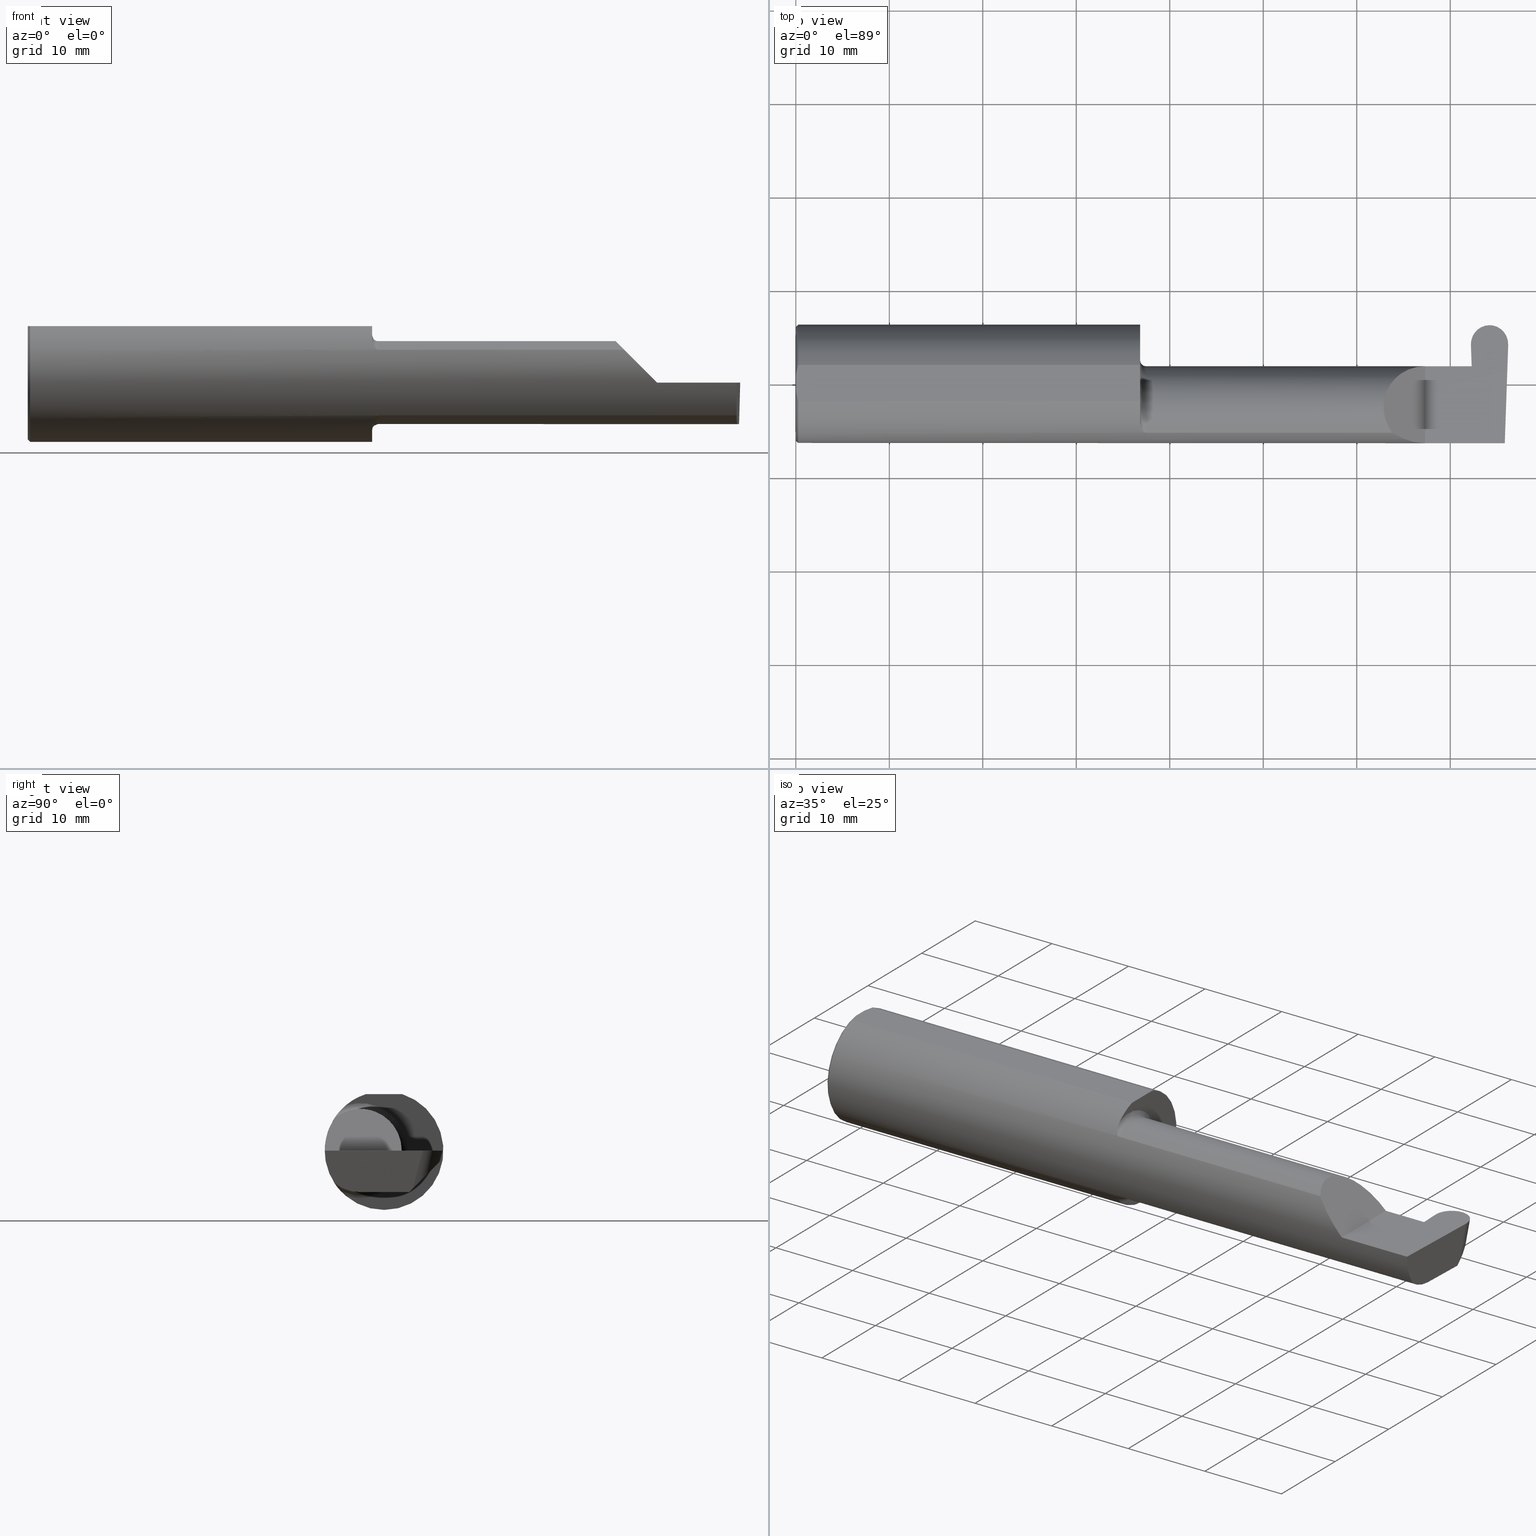
[diagram: canonical four-view strip — front | top / right | iso, engineering-drawing reading convention]
A machine part, canonical four-view strip (front | top / right | iso — engineering-drawing reading convention). The complete STEP part file that produces these views, byte-faithful:
ISO-10303-21;
HEADER;
FILE_DESCRIPTION (( 'STEP AP203' ),
    '1' );
FILE_NAME ('222497-GFR156-24.STEP',
    '2024-06-28T19:22:06',
    ( '' ),
    ( '' ),
    'SwSTEP 2.0',
    'SolidWorks 2024',
    '' );
FILE_SCHEMA (( 'CONFIG_CONTROL_DESIGN' ));
ENDSEC;

DATA;
#1 = DATE_AND_TIME ( #558, #137 ) ;
#2 = CC_DESIGN_SECURITY_CLASSIFICATION ( #703, ( #451 ) ) ;
#3 = LINE ( 'NONE', #213, #90 ) ;
#4 = FACE_OUTER_BOUND ( 'NONE', #405, .T. ) ;
#5 = ADVANCED_FACE ( 'NONE', ( #4 ), #702, .T. ) ;
#6 = DIRECTION ( 'NONE',  ( -0.03489949670249561930, -0.9993908270190959842, 0.000000000000000000 ) ) ;
#7 = CARTESIAN_POINT ( 'NONE',  ( 2.849201506090199398, -0.1008500000000000368, -0.1750000000000000444 ) ) ;
#8 = PLANE ( 'NONE',  #58 ) ;
#9 = CARTESIAN_POINT ( 'NONE',  ( 0.000000000000000000, -0.07650098038587520299, 0.2378499999999998671 ) ) ;
#10 = UNCERTAINTY_MEASURE_WITH_UNIT (LENGTH_MEASURE( 1.000000000000000082E-05 ), #28, 'distance_accuracy_value', 'NONE');
#11 = ADVANCED_FACE ( 'NONE', ( #154 ), #592, .F. ) ;
#12 = CIRCLE ( 'NONE', #560, 0.2498499999999999888 ) ;
#13 = AXIS2_PLACEMENT_3D ( 'NONE', #482, #375, #689 ) ;
#14 = DIRECTION ( 'NONE',  ( -1.000000000000000000, -0.000000000000000000, -0.000000000000000000 ) ) ;
#15 = CARTESIAN_POINT ( 'NONE',  ( 1.450000000000000178, 0.07650098038587520299, 0.2378499999999998671 ) ) ;
#16 = EDGE_CURVE ( 'NONE', #275, #632, #265, .T. ) ;
#17 = ORIENTED_EDGE ( 'NONE', *, *, #130, .T. ) ;
#18 = CARTESIAN_POINT ( 'NONE',  ( 2.921288626691769696, 0.1664000941608517470, 0.001937958156663478889 ) ) ;
#19 = DIRECTION ( 'NONE',  ( 1.000000000000000000, 6.129676535826869480E-17, 0.000000000000000000 ) ) ;
#20 = VERTEX_POINT ( 'NONE', #7 ) ;
#21 = CARTESIAN_POINT ( 'NONE',  ( 1.450000000000000178, -0.07650098038587527238, 0.2378499999999998671 ) ) ;
#22 = DIRECTION ( 'NONE',  ( 0.9992386149554828290, 0.03489418134010871531, 0.01745240643728358798 ) ) ;
#23 = VERTEX_POINT ( 'NONE', #206 ) ;
#24 = CARTESIAN_POINT ( 'NONE',  ( 1.450000000000000178, -0.1616050818046604332, 0.1905487340154980169 ) ) ;
#25 = VECTOR ( 'NONE', #570, 39.37007874015748143 ) ;
#26 = CARTESIAN_POINT ( 'NONE',  ( 2.600434159100402987, -0.2498499999999999610, 0.04956584089959698708 ) ) ;
#27 = ORIENTED_EDGE ( 'NONE', *, *, #410, .T. ) ;
#28 =( CONVERSION_BASED_UNIT ( 'INCH', #149 ) LENGTH_UNIT ( ) NAMED_UNIT ( #439 ) );
#29 = DIRECTION ( 'NONE',  ( 0.000000000000000000, -1.000000000000000000, 0.000000000000000000 ) ) ;
#30 = ADVANCED_FACE ( 'NONE', ( #50 ), #159, .F. ) ;
#31 = VERTEX_POINT ( 'NONE', #392 ) ;
#32 = CARTESIAN_POINT ( 'NONE',  ( 1.474999999999999867, -0.1008500000000001062, 0.000000000000000000 ) ) ;
#33 = ORIENTED_EDGE ( 'NONE', *, *, #515, .F. ) ;
#34 = FACE_OUTER_BOUND ( 'NONE', #232, .T. ) ;
#35 = AXIS2_PLACEMENT_3D ( 'NONE', #105, #431, #267 ) ;
#36 = ORIENTED_EDGE ( 'NONE', *, *, #86, .F. ) ;
#37 = AXIS2_PLACEMENT_3D ( 'NONE', #18, #390, #618 ) ;
#38 = EDGE_CURVE ( 'NONE', #381, #531, #347, .T. ) ;
#39 = EDGE_CURVE ( 'NONE', #113, #677, #88, .T. ) ;
#40 = CARTESIAN_POINT ( 'NONE',  ( 2.847896006995015661, 0.07056399972053264968, -0.1057442486376091867 ) ) ;
#41 = ORIENTED_EDGE ( 'NONE', *, *, #158, .F. ) ;
#42 = LINE ( 'NONE', #422, #378 ) ;
#43 = ORIENTED_EDGE ( 'NONE', *, *, #472, .T. ) ;
#44 = CARTESIAN_POINT ( 'NONE',  ( 2.158868309999999902, -0.2080850024789289432, 0.1382955322609668858 ) ) ;
#45 = CARTESIAN_POINT ( 'NONE',  ( 2.834942811380418259, 0.07414999999999977165, 0.000000000000000000 ) ) ;
#46 = VERTEX_POINT ( 'NONE', #323 ) ;
#47 = AXIS2_PLACEMENT_3D ( 'NONE', #436, #601, #550 ) ;
#48 = CARTESIAN_POINT ( 'NONE',  ( 0.000000000000000000, 0.000000000000000000, -0.2398500000000001742 ) ) ;
#49 = CARTESIAN_POINT ( 'NONE',  ( 1.474999999999999867, -0.1008500000000001062, 0.000000000000000000 ) ) ;
#50 = FACE_OUTER_BOUND ( 'NONE', #687, .T. ) ;
#51 = CARTESIAN_POINT ( 'NONE',  ( 2.847162130284206061, 0.1205682248496117298, -0.1602561122985578790 ) ) ;
#52 = CARTESIAN_POINT ( 'NONE',  ( 0.000000000000000000, 0.000000000000000000, 0.000000000000000000 ) ) ;
#53 = APPROVAL_ROLE ( '' ) ;
#54 = LINE ( 'NONE', #645, #67 ) ;
#55 = ORIENTED_EDGE ( 'NONE', *, *, #388, .F. ) ;
#56 = AXIS2_PLACEMENT_3D ( 'NONE', #667, #220, #407 ) ;
#57 = ADVANCED_FACE ( 'NONE', ( #161 ), #255, .F. ) ;
#58 = AXIS2_PLACEMENT_3D ( 'NONE', #125, #235, #459 ) ;
#59 = EDGE_CURVE ( 'NONE', #454, #677, #488, .T. ) ;
#60 = LINE ( 'NONE', #653, #425 ) ;
#61 = CARTESIAN_POINT ( 'NONE',  ( 1.474999999999999867, -0.2080850024789288599, -0.1382955322609669135 ) ) ;
#62 = FACE_OUTER_BOUND ( 'NONE', #190, .T. ) ;
#63 = DATE_TIME_ROLE ( 'classification_date' ) ;
#64 = CARTESIAN_POINT ( 'NONE',  ( 1.474999999999999867, -0.2080850024789289432, 0.1382955322609668858 ) ) ;
#65 = CARTESIAN_POINT ( 'NONE',  ( 2.984481223124517690, -0.2080850024789288599, -0.1382955322609668858 ) ) ;
#66 = ORIENTED_EDGE ( 'NONE', *, *, #434, .F. ) ;
#67 = VECTOR ( 'NONE', #597, 39.37007874015748854 ) ;
#68 = CARTESIAN_POINT ( 'NONE',  ( 1.450367168219774294, -0.1713400252854603290, 0.1819601557798505576 ) ) ;
#69 = CARTESIAN_POINT ( 'NONE',  ( 1.456147634408387903, -0.1932733126899460196, -0.1584637047788197695 ) ) ;
#70 = ORIENTED_EDGE ( 'NONE', *, *, #303, .T. ) ;
#71 = EDGE_CURVE ( 'NONE', #565, #113, #449, .T. ) ;
#72 = CARTESIAN_POINT ( 'NONE',  ( 2.984481223124517690, -0.2080850024789288599, -0.1382955322609668858 ) ) ;
#73 = ORIENTED_EDGE ( 'NONE', *, *, #135, .T. ) ;
#74 = CARTESIAN_POINT ( 'NONE',  ( 3.402190948718818664, -0.1008499999999999674, -0.1750000000000000722 ) ) ;
#75 = CARTESIAN_POINT ( 'NONE',  ( 2.650000000000000355, -0.2498499999999999610, 4.286263797015729199E-17 ) ) ;
#76 = VERTEX_POINT ( 'NONE', #126 ) ;
#77 = EDGE_CURVE ( 'NONE', #677, #178, #312, .T. ) ;
#78 = LINE ( 'NONE', #682, #463 ) ;
#79 = AXIS2_PLACEMENT_3D ( 'NONE', #511, #676, #561 ) ;
#80 = LOCAL_TIME ( 12, 22, 6.000000000000000000, #260 ) ;
#81 = CARTESIAN_POINT ( 'NONE',  ( 2.919979534775631880, 0.1517307160382624642, -0.05280890631227902476 ) ) ;
#82 = EDGE_LOOP ( 'NONE', ( #117, #249, #613, #429, #575 ) ) ;
#83 = DIRECTION ( 'NONE',  ( -0.7071067811865511255, 0.000000000000000000, 0.7071067811865439090 ) ) ;
#84 = ORIENTED_EDGE ( 'NONE', *, *, #282, .F. ) ;
#85 = CARTESIAN_POINT ( 'NONE',  ( 0.009999999999999856226, -0.07650098038587520299, 0.2378499999999998671 ) ) ;
#86 = EDGE_CURVE ( 'NONE', #31, #46, #186, .T. ) ;
#87 = ORIENTED_EDGE ( 'NONE', *, *, #39, .T. ) ;
#88 = CIRCLE ( 'NONE', #627, 0.1999999999999999556 ) ;
#89 = CARTESIAN_POINT ( 'NONE',  ( 2.834836206108759527, 0.07404339472834127467, -0.006107411922952336175 ) ) ;
#90 = VECTOR ( 'NONE', #441, 39.37007874015748143 ) ;
#91 = VERTEX_POINT ( 'NONE', #403 ) ;
#92 = DIRECTION ( 'NONE',  ( -1.000000000000000000, -6.129676535826869480E-17, -0.000000000000000000 ) ) ;
#93 = ORIENTED_EDGE ( 'NONE', *, *, #259, .T. ) ;
#94 = CARTESIAN_POINT ( 'NONE',  ( 1.450000000000000178, -0.1616050818046604332, -0.1905487340154980169 ) ) ;
#95 = LINE ( 'NONE', #648, #331 ) ;
#96 = ORIENTED_EDGE ( 'NONE', *, *, #368, .F. ) ;
#97 = DIRECTION ( 'NONE',  ( -0.03701744261649942552, 0.7066221440565398915, 0.7066221440565477740 ) ) ;
#98 = APPROVAL ( #212, 'UNSPECIFIED' ) ;
#99 = CARTESIAN_POINT ( 'NONE',  ( 2.650000000000000355, -0.2498499999999999610, 4.286263797015729199E-17 ) ) ;
#100 = VERTEX_POINT ( 'NONE', #274 ) ;
#101 =( BOUNDED_CURVE ( )  B_SPLINE_CURVE ( 3, ( #574, #480, #199, #528 ),
 .UNSPECIFIED., .F., .T. ) 
 B_SPLINE_CURVE_WITH_KNOTS ( ( 4, 4 ),
 ( 0.4474640105399725343, 1.107026853503877861 ),
 .UNSPECIFIED. ) 
 CURVE ( )  GEOMETRIC_REPRESENTATION_ITEM ( )  RATIONAL_B_SPLINE_CURVE ( ( 1.000000000000000000, 0.9640754331822831702, 0.9640754331822831702, 1.000000000000000000 ) ) 
 REPRESENTATION_ITEM ( '' )  );
#102 = AXIS2_PLACEMENT_3D ( 'NONE', #660, #150, #309 ) ;
#103 = CC_DESIGN_APPROVAL ( #236, ( #451 ) ) ;
#104 = APPROVAL_STATUS ( 'not_yet_approved' ) ;
#105 = CARTESIAN_POINT ( 'NONE',  ( 0.000000000000000000, 0.000000000000000000, 0.000000000000000000 ) ) ;
#106 = DIRECTION ( 'NONE',  ( 0.000000000000000000, 0.000000000000000000, -1.000000000000000000 ) ) ;
#107 = CARTESIAN_POINT ( 'NONE',  ( 1.474999999999999867, -0.2080850024789288599, -0.1382955322609669135 ) ) ;
#108 = DIRECTION ( 'NONE',  ( 0.000000000000000000, -1.000000000000000000, 0.000000000000000000 ) ) ;
#109 = EDGE_CURVE ( 'NONE', #443, #462, #590, .T. ) ;
#110 = EDGE_CURVE ( 'NONE', #23, #381, #623, .T. ) ;
#111 = DATE_TIME_ROLE ( 'creation_date' ) ;
#112 = DIRECTION ( 'NONE',  ( -0.000000000000000000, 1.223176342469858124E-16, 1.000000000000000000 ) ) ;
#113 = VERTEX_POINT ( 'NONE', #279 ) ;
#114 = VECTOR ( 'NONE', #6, 39.37007874015748854 ) ;
#115 = CARTESIAN_POINT ( 'NONE',  ( 2.968109836623094466, 0.2342636810864597019, -0.04656065606170858850 ) ) ;
#116 = CARTESIAN_POINT ( 'NONE',  ( 0.000000000000000000, 0.000000000000000000, 0.000000000000000000 ) ) ;
#117 = ORIENTED_EDGE ( 'NONE', *, *, #674, .T. ) ;
#118 = CALENDAR_DATE ( 2024, 28, 6 ) ;
#119 = CARTESIAN_POINT ( 'NONE',  ( 2.995574489715794542, 0.1205682248496117576, -0.1602561122985578790 ) ) ;
#120 = FACE_OUTER_BOUND ( 'NONE', #569, .T. ) ;
#121 = ORIENTED_EDGE ( 'NONE', *, *, #543, .T. ) ;
#122 = CARTESIAN_POINT ( 'NONE',  ( -0.002039370078740339320, 0.1058243371481696476, -0.1750000000000001277 ) ) ;
#123 = CARTESIAN_POINT ( 'NONE',  ( 2.552984868485332015, -0.2355204011147991883, 0.09701513151466749363 ) ) ;
#124 = ORIENTED_EDGE ( 'NONE', *, *, #465, .T. ) ;
#125 = CARTESIAN_POINT ( 'NONE',  ( 2.850147609618529643, -2.782351745012011879, -0.1805526503597116583 ) ) ;
#126 = CARTESIAN_POINT ( 'NONE',  ( 2.921940976684220370, 0.2471499999999999808, 0.000000000000000000 ) ) ;
#127 = EDGE_LOOP ( 'NONE', ( #579, #707, #411 ) ) ;
#128 = CARTESIAN_POINT ( 'NONE',  ( 4.499279347985562423E-32, -0.2498499999999999610, 3.673940397442054938E-16 ) ) ;
#129 = DIRECTION ( 'NONE',  ( -0.03489949670249601482, 0.9993908270190959842, -1.222058880457094148E-16 ) ) ;
#130 = EDGE_CURVE ( 'NONE', #562, #476, #168, .T. ) ;
#131 = EDGE_LOOP ( 'NONE', ( #522, #262, #668 ) ) ;
#132 = PLANE ( 'NONE',  #581 ) ;
#133 = LINE ( 'NONE', #457, #136 ) ;
#134 = VERTEX_POINT ( 'NONE', #502 ) ;
#135 = EDGE_CURVE ( 'NONE', #194, #577, #133, .T. ) ;
#136 = VECTOR ( 'NONE', #284, 39.37007874015748143 ) ;
#137 = LOCAL_TIME ( 12, 22, 6.000000000000000000, #447 ) ;
#138 = CARTESIAN_POINT ( 'NONE',  ( 2.921368310000000967, 0.2348204004542366052, -0.04600393669393169210 ) ) ;
#139 = ORIENTED_EDGE ( 'NONE', *, *, #183, .T. ) ;
#140 = ADVANCED_FACE ( 'NONE', ( #120 ), #563, .F. ) ;
#141 = ORIENTED_EDGE ( 'NONE', *, *, #183, .F. ) ;
#142 = DIRECTION ( 'NONE',  ( -1.000000000000000000, -0.000000000000000000, -0.000000000000000000 ) ) ;
#143 = ORIENTED_EDGE ( 'NONE', *, *, #158, .T. ) ;
#144 = DIRECTION ( 'NONE',  ( -6.129676535826869480E-17, 1.000000000000000000, 0.000000000000000000 ) ) ;
#145 = ORIENTED_EDGE ( 'NONE', *, *, #410, .F. ) ;
#146 = B_SPLINE_CURVE_WITH_KNOTS ( 'NONE', 3,
 ( #524, #147, #361, #365 ),
 .UNSPECIFIED., .F., .F.,
 ( 4, 4 ),
 ( 0.01593449416844770414, 0.01712021724825603733 ),
 .UNSPECIFIED. ) ;
#147 = CARTESIAN_POINT ( 'NONE',  ( 0.002005502345409059580, 0.04647171987093979412, 0.2378499999999998671 ) ) ;
#148 = ORIENTED_EDGE ( 'NONE', *, *, #195, .F. ) ;
#149 = LENGTH_MEASURE_WITH_UNIT ( LENGTH_MEASURE( 0.02539999999999999897 ), #523 );
#150 = DIRECTION ( 'NONE',  ( -1.000000000000000000, -0.000000000000000000, -0.000000000000000000 ) ) ;
#151 = ORIENTED_EDGE ( 'NONE', *, *, #639, .T. ) ;
#152 = DIRECTION ( 'NONE',  ( -0.000000000000000000, 1.000000000000000000, -0.000000000000000000 ) ) ;
#153 = CARTESIAN_POINT ( 'NONE',  ( 0.000000000000000000, -0.03090954545120560767, 0.2378499999999998671 ) ) ;
#154 = FACE_OUTER_BOUND ( 'NONE', #82, .T. ) ;
#155 = AXIS2_PLACEMENT_3D ( 'NONE', #619, #22, #171 ) ;
#156 = ADVANCED_FACE ( 'NONE', ( #62 ), #270, .F. ) ;
#157 = LINE ( 'NONE', #549, #192 ) ;
#158 = EDGE_CURVE ( 'NONE', #334, #565, #352, .T. ) ;
#159 = PLANE ( 'NONE',  #428 ) ;
#160 = CARTESIAN_POINT ( 'NONE',  ( 2.511704467739032332, -0.2080850024789289432, 0.1382955322609668858 ) ) ;
#161 = FACE_OUTER_BOUND ( 'NONE', #184, .T. ) ;
#162 = EDGE_CURVE ( 'NONE', #562, #454, #231, .T. ) ;
#163 = APPROVAL_ROLE ( '' ) ;
#164 = CARTESIAN_POINT ( 'NONE',  ( 2.918834969710874638, 0.2667364315176928846, 0.07309755756299828044 ) ) ;
#165 = DIRECTION ( 'NONE',  ( 0.000000000000000000, -0.7071067811865435759, -0.7071067811865514585 ) ) ;
#166 = ORIENTED_EDGE ( 'NONE', *, *, #434, .T. ) ;
#167 = SECURITY_CLASSIFICATION_LEVEL ( 'unclassified' ) ;
#168 =( BOUNDED_CURVE ( )  B_SPLINE_CURVE ( 3, ( #65, #556, #396, #615 ),
 .UNSPECIFIED., .F., .T. ) 
 B_SPLINE_CURVE_WITH_KNOTS ( ( 4, 4 ),
 ( 6.160376845738947615, 6.746954780470606039 ),
 .UNSPECIFIED. ) 
 CURVE ( )  GEOMETRIC_REPRESENTATION_ITEM ( )  RATIONAL_B_SPLINE_CURVE ( ( 1.000000000000000000, 0.9715321379117538569, 0.9715321379117538569, 1.000000000000000000 ) ) 
 REPRESENTATION_ITEM ( '' )  );
#169 = VECTOR ( 'NONE', #507, 39.37007874015748143 ) ;
#170 = CARTESIAN_POINT ( 'NONE',  ( 1.456159563508733878, -0.1933019864360848439, 0.1584298865564832681 ) ) ;
#171 = DIRECTION ( 'NONE',  ( -0.03489949670249601482, 0.9993908270190959842, 0.000000000000000000 ) ) ;
#172 = ORIENTED_EDGE ( 'NONE', *, *, #77, .F. ) ;
#173 = LINE ( 'NONE', #122, #328 ) ;
#174 = CARTESIAN_POINT ( 'NONE',  ( 1.450000000000000400, -0.1716188362992555061, -0.1820560320165480750 ) ) ;
#175 = ORIENTED_EDGE ( 'NONE', *, *, #71, .T. ) ;
#176 = CARTESIAN_POINT ( 'NONE',  ( 1.450000000000000622, -0.1665641037263009827, 0.1863429692936361681 ) ) ;
#177 = CARTESIAN_POINT ( 'NONE',  ( 1.451385488563270432, -0.1808287530430325862, -0.1728790649396287349 ) ) ;
#178 = VERTEX_POINT ( 'NONE', #15 ) ;
#179 = VECTOR ( 'NONE', #226, 39.37007874015748854 ) ;
#180 = LINE ( 'NONE', #675, #416 ) ;
#181 = ADVANCED_FACE ( 'NONE', ( #223 ), #593, .T. ) ;
#182 = LINE ( 'NONE', #672, #461 ) ;
#183 = EDGE_CURVE ( 'NONE', #691, #244, #182, .T. ) ;
#184 = EDGE_LOOP ( 'NONE', ( #27, #310, #408 ) ) ;
#185 = CARTESIAN_POINT ( 'NONE',  ( 2.409263745716142768, -0.07597241004310682777, 0.2407362542838554220 ) ) ;
#186 = LINE ( 'NONE', #348, #495 ) ;
#187 = ORIENTED_EDGE ( 'NONE', *, *, #162, .T. ) ;
#188 = LINE ( 'NONE', #311, #25 ) ;
#189 = FACE_OUTER_BOUND ( 'NONE', #701, .T. ) ;
#190 = EDGE_LOOP ( 'NONE', ( #166, #247, #124 ) ) ;
#191 = PERSON_AND_ORGANIZATION ( #602, #314 ) ;
#192 = VECTOR ( 'NONE', #203, 39.37007874015748143 ) ;
#193 = CARTESIAN_POINT ( 'NONE',  ( 0.009999999999999856226, 0.000000000000000000, 0.000000000000000000 ) ) ;
#194 = VERTEX_POINT ( 'NONE', #568 ) ;
#195 = EDGE_CURVE ( 'NONE', #565, #178, #287, .T. ) ;
#196 = CARTESIAN_POINT ( 'NONE',  ( 2.921368310000001411, 0.2414292636342587894, -0.02135007877365307713 ) ) ;
#197 = VERTEX_POINT ( 'NONE', #363 ) ;
#198 = ORIENTED_EDGE ( 'NONE', *, *, #200, .T. ) ;
#199 = CARTESIAN_POINT ( 'NONE',  ( 2.986216381845219203, -0.1400387324517229914, -0.1750000000000000999 ) ) ;
#200 = EDGE_CURVE ( 'NONE', #577, #438, #656, .T. ) ;
#201 = VERTEX_POINT ( 'NONE', #521 ) ;
#202 = CC_DESIGN_DATE_AND_TIME_ASSIGNMENT ( #610, #111, ( #652 ) ) ;
#203 = DIRECTION ( 'NONE',  ( -0.000000000000000000, 1.000000000000000000, -0.000000000000000000 ) ) ;
#204 = CARTESIAN_POINT ( 'NONE',  ( 1.467611663768900065, -0.2061921161193829566, -0.1411075319999378075 ) ) ;
#205 = CARTESIAN_POINT ( 'NONE',  ( 2.842863629214074095, 0.1635087207221616323, 0.000000000000000000 ) ) ;
#206 = CARTESIAN_POINT ( 'NONE',  ( 2.842863629214074095, 0.1635087207221616323, 0.000000000000000000 ) ) ;
#207 = COORDINATED_UNIVERSAL_TIME_OFFSET ( 8, 0, .BEHIND. ) ;
#208 = EDGE_CURVE ( 'NONE', #178, #100, #42, .T. ) ;
#209 = DIRECTION ( 'NONE',  ( 0.000000000000000000, -1.000000000000000000, 1.223176342469858124E-16 ) ) ;
#210 = CARTESIAN_POINT ( 'NONE',  ( 2.845984104502489398, 0.07414999999999977165, 0.000000000000000000 ) ) ;
#211 = APPROVAL_PERSON_ORGANIZATION ( #599, #98, #53 ) ;
#212 = APPROVAL_STATUS ( 'not_yet_approved' ) ;
#213 = CARTESIAN_POINT ( 'NONE',  ( 2.845984104502489398, 0.07414999999999977165, 0.000000000000000000 ) ) ;
#214 = DIRECTION ( 'NONE',  ( 0.000000000000000000, 0.000000000000000000, -1.000000000000000000 ) ) ;
#215 = PERSON_AND_ORGANIZATION ( #602, #314 ) ;
#216 = DIRECTION ( 'NONE',  ( -1.000000000000000000, 0.000000000000000000, 1.224646799147351975E-16 ) ) ;
#217 = ORIENTED_EDGE ( 'NONE', *, *, #486, .F. ) ;
#218 = APPROVAL_DATE_TIME ( #663, #98 ) ;
#219 = CARTESIAN_POINT ( 'NONE',  ( 0.000000000000000000, -0.03090954545120560767, 0.2378499999999998671 ) ) ;
#220 = DIRECTION ( 'NONE',  ( 1.000000000000000000, 6.129676535826869480E-17, 0.000000000000000000 ) ) ;
#221 = CC_DESIGN_PERSON_AND_ORGANIZATION_ASSIGNMENT ( #215, #544, ( #451 ) ) ;
#222 = PLANE ( 'NONE',  #519 ) ;
#223 = FACE_OUTER_BOUND ( 'NONE', #527, .T. ) ;
#224 = ORIENTED_EDGE ( 'NONE', *, *, #39, .F. ) ;
#225 = CARTESIAN_POINT ( 'NONE',  ( 2.921368310000000967, 0.2348204004542366052, -0.04600393669393169210 ) ) ;
#226 = DIRECTION ( 'NONE',  ( 0.02590004391968283443, -0.2587322210431824421, -0.9656017944882975268 ) ) ;
#227 = ORIENTED_EDGE ( 'NONE', *, *, #135, .F. ) ;
#228 = ADVANCED_FACE ( 'NONE', ( #526 ), #239, .T. ) ;
#229 = DIRECTION ( 'NONE',  ( 1.000000000000000000, 0.000000000000000000, 0.000000000000000000 ) ) ;
#230 = ADVANCED_FACE ( 'NONE', ( #34 ), #412, .T. ) ;
#231 = LINE ( 'NONE', #337, #580 ) ;
#232 = EDGE_LOOP ( 'NONE', ( #217, #509, #364, #66, #694 ) ) ;
#233 = AXIS2_PLACEMENT_3D ( 'NONE', #81, #475, #699 ) ;
#234 = CIRCLE ( 'NONE', #629, 0.2498499999999999888 ) ;
#235 = DIRECTION ( 'NONE',  ( 0.9998367324388628408, 0.0003153570480505199394, 0.01806679318280377325 ) ) ;
#236 = APPROVAL ( #321, 'UNSPECIFIED' ) ;
#237 = DIRECTION ( 'NONE',  ( -1.000000000000000000, -6.129676535826869480E-17, -0.000000000000000000 ) ) ;
#238 = ORIENTED_EDGE ( 'NONE', *, *, #110, .T. ) ;
#239 = PLANE ( 'NONE',  #289 ) ;
#240 = ORIENTED_EDGE ( 'NONE', *, *, #696, .F. ) ;
#241 = CARTESIAN_POINT ( 'NONE',  ( 2.849147273053401097, 0.07109536363756167876, -0.1750000000000000722 ) ) ;
#242 = DIRECTION ( 'NONE',  ( 0.000000000000000000, 0.000000000000000000, -1.000000000000000000 ) ) ;
#243 =( BOUNDED_CURVE ( )  B_SPLINE_CURVE ( 3, ( #578, #300, #40, #248 ),
 .UNSPECIFIED., .F., .T. ) 
 B_SPLINE_CURVE_WITH_KNOTS ( ( 4, 4 ),
 ( 3.159045946109732661, 4.694935687864651541 ),
 .UNSPECIFIED. ) 
 CURVE ( )  GEOMETRIC_REPRESENTATION_ITEM ( )  RATIONAL_B_SPLINE_CURVE ( ( 1.000000000000000000, 0.8128932002257884815, 0.8128932002257884815, 1.000000000000000000 ) ) 
 REPRESENTATION_ITEM ( '' )  );
#244 = VERTEX_POINT ( 'NONE', #427 ) ;
#245 = AXIS2_PLACEMENT_3D ( 'NONE', #534, #253, #216 ) ;
#246 = CARTESIAN_POINT ( 'NONE',  ( 2.834942811380418259, 0.07414999999999977165, 0.000000000000000000 ) ) ;
#247 = ORIENTED_EDGE ( 'NONE', *, *, #585, .T. ) ;
#248 = CARTESIAN_POINT ( 'NONE',  ( 2.846094497492901887, 0.07404339472834124691, -0.006107411922953763853 ) ) ;
#249 = ORIENTED_EDGE ( 'NONE', *, *, #38, .T. ) ;
#250 = EDGE_CURVE ( 'NONE', #315, #531, #669, .T. ) ;
#251 = CARTESIAN_POINT ( 'NONE',  ( 2.921368310000000967, 0.2370242055618500543, -0.03778639420637353030 ) ) ;
#252 = ORIENTED_EDGE ( 'NONE', *, *, #388, .T. ) ;
#253 = DIRECTION ( 'NONE',  ( -1.224646799147351975E-16, 0.000000000000000000, -1.000000000000000000 ) ) ;
#254 = VECTOR ( 'NONE', #97, 39.37007874015748854 ) ;
#255 = PLANE ( 'NONE',  #47 ) ;
#256 = LINE ( 'NONE', #644, #290 ) ;
#257 = DIRECTION ( 'NONE',  ( -1.000000000000000000, -6.129676535826869480E-17, -0.000000000000000000 ) ) ;
#258 = DIRECTION ( 'NONE',  ( 0.000000000000000000, -0.01745240643728358451, -0.9998476951563912696 ) ) ;
#259 = EDGE_CURVE ( 'NONE', #275, #100, #146, .T. ) ;
#260 = COORDINATED_UNIVERSAL_TIME_OFFSET ( 8, 0, .BEHIND. ) ;
#261 = CARTESIAN_POINT ( 'NONE',  ( 2.999952099699010333, 0.1657741035941333874, 0.000000000000000000 ) ) ;
#262 = ORIENTED_EDGE ( 'NONE', *, *, #700, .F. ) ;
#263 = EDGE_CURVE ( 'NONE', #356, #100, #12, .T. ) ;
#264 = CARTESIAN_POINT ( 'NONE',  ( 2.841163163816639692, 0.2122036785419297300, 1.942305813555199541E-17 ) ) ;
#265 = CIRCLE ( 'NONE', #357, 0.2398500000000001742 ) ;
#266 = ORIENTED_EDGE ( 'NONE', *, *, #486, .T. ) ;
#267 = DIRECTION ( 'NONE',  ( 0.000000000000000000, 0.000000000000000000, 1.000000000000000000 ) ) ;
#268 = CARTESIAN_POINT ( 'NONE',  ( 1.473318040126429640, -0.2080850024789288877, -0.1382955322609669135 ) ) ;
#269 = CARTESIAN_POINT ( 'NONE',  ( 2.999872990785927396, 0.1635087207221616878, 0.000000000000000000 ) ) ;
#270 = PLANE ( 'NONE',  #79 ) ;
#271 = DESIGN_CONTEXT ( 'detailed design', #582, 'design' ) ;
#272 = SHAPE_DEFINITION_REPRESENTATION ( #360, #479 ) ;
#273 = DIRECTION ( 'NONE',  ( 1.000000000000000000, -0.000000000000000000, -0.000000000000000000 ) ) ;
#274 = CARTESIAN_POINT ( 'NONE',  ( 0.009999999999999856226, 0.07650098038587520299, 0.2378499999999998671 ) ) ;
#275 = VERTEX_POINT ( 'NONE', #419 ) ;
#276 = AXIS2_PLACEMENT_3D ( 'NONE', #453, #680, #342 ) ;
#277 =( GEOMETRIC_REPRESENTATION_CONTEXT ( 3 ) GLOBAL_UNCERTAINTY_ASSIGNED_CONTEXT ( ( #10 ) ) GLOBAL_UNIT_ASSIGNED_CONTEXT ( ( #28, #625, #589 ) ) REPRESENTATION_CONTEXT ( 'NONE', 'WORKASPACE' ) );
#278 = CARTESIAN_POINT ( 'NONE',  ( 1.462616400345755574, -0.2024684335577102701, 0.1464246884265638926 ) ) ;
#279 = CARTESIAN_POINT ( 'NONE',  ( 1.450000000000000178, -0.1616050818046604332, 0.1905487340154980169 ) ) ;
#280 = EDGE_CURVE ( 'NONE', #562, #46, #101, .T. ) ;
#281 = EDGE_LOOP ( 'NONE', ( #649, #17, #654, #673, #638, #343, #617, #41, #609, #367, #620, #172, #478 ) ) ;
#282 = EDGE_CURVE ( 'NONE', #305, #23, #530, .T. ) ;
#283 = CARTESIAN_POINT ( 'NONE',  ( 0.009999999999999856226, -0.07650098038587520299, 0.2378499999999998671 ) ) ;
#284 = DIRECTION ( 'NONE',  ( -1.000000000000000000, -6.129676535826869480E-17, -0.000000000000000000 ) ) ;
#285 = ORIENTED_EDGE ( 'NONE', *, *, #674, .F. ) ;
#286 = CARTESIAN_POINT ( 'NONE',  ( 2.999952099699010333, 0.1657741035941333874, 0.000000000000000000 ) ) ;
#287 = LINE ( 'NONE', #516, #517 ) ;
#288 = ORIENTED_EDGE ( 'NONE', *, *, #566, .T. ) ;
#289 = AXIS2_PLACEMENT_3D ( 'NONE', #571, #697, #144 ) ;
#290 = VECTOR ( 'NONE', #152, 39.37007874015748143 ) ;
#291 = LINE ( 'NONE', #705, #254 ) ;
#292 = DIRECTION ( 'NONE',  ( 6.129676535826869480E-17, -1.000000000000000000, 0.000000000000000000 ) ) ;
#293 = ORIENTED_EDGE ( 'NONE', *, *, #472, .F. ) ;
#294 = DIRECTION ( 'NONE',  ( -0.01806954526206912617, 0.01744955702544859211, 0.9996844524616943506 ) ) ;
#295 = DIRECTION ( 'NONE',  ( -0.0003154085283454420899, 0.9999999502587288980, -1.223178646569382945E-16 ) ) ;
#296 = ORIENTED_EDGE ( 'NONE', *, *, #16, .F. ) ;
#297 = DIRECTION ( 'NONE',  ( -6.129676535826869480E-17, 1.000000000000000000, 0.000000000000000000 ) ) ;
#298 = EDGE_LOOP ( 'NONE', ( #481, #512, #588, #394, #535 ) ) ;
#299 = LOCAL_TIME ( 12, 22, 6.000000000000000000, #382 ) ;
#300 = CARTESIAN_POINT ( 'NONE',  ( 2.849170060624870882, -0.001152430219572236555, -0.1750000000000001277 ) ) ;
#301 = EDGE_LOOP ( 'NONE', ( #655, #148, #175, #87 ) ) ;
#302 = EDGE_CURVE ( 'NONE', #20, #194, #243, .T. ) ;
#303 = EDGE_CURVE ( 'NONE', #20, #691, #636, .T. ) ;
#304 = CYLINDRICAL_SURFACE ( 'NONE', #391, 0.1750000000000000444 ) ;
#305 = VERTEX_POINT ( 'NONE', #576 ) ;
#306 = B_SPLINE_CURVE_WITH_KNOTS ( 'NONE', 3,
 ( #24, #176, #68, #399, #614, #170, #514, #278, #332, #607, #336, #406, #351, #64 ),
 .UNSPECIFIED., .F., .F.,
 ( 4, 2, 2, 2, 2, 2, 4 ),
 ( 0.0003834465838148149201, 0.0008781406165086589211, 0.001372834649202502814, 0.001867528681896346923, 0.002114875698243273098, 0.002238549206416742907, 0.002362222714590213150 ),
 .UNSPECIFIED. ) ;
#307 = DIRECTION ( 'NONE',  ( 1.000000000000000000, 6.129676535826869480E-17, 0.000000000000000000 ) ) ;
#308 = APPROVAL ( #104, 'UNSPECIFIED' ) ;
#309 = DIRECTION ( 'NONE',  ( 0.000000000000000000, 0.000000000000000000, -1.000000000000000000 ) ) ;
#310 = ORIENTED_EDGE ( 'NONE', *, *, #16, .T. ) ;
#311 = CARTESIAN_POINT ( 'NONE',  ( 2.845984104502489398, 0.07414999999999977165, 0.000000000000000000 ) ) ;
#312 = CIRCLE ( 'NONE', #56, 0.2498499999999999888 ) ;
#313 = DIRECTION ( 'NONE',  ( 0.7071067811865486830, 0.000000000000000000, -0.7071067811865462405 ) ) ;
#314 = ORGANIZATION ( 'UNSPECIFIED', 'UNSPECIFIED', '' ) ;
#315 = VERTEX_POINT ( 'NONE', #626 ) ;
#316 = APPROVAL_ROLE ( '' ) ;
#317 = B_SPLINE_CURVE_WITH_KNOTS ( 'NONE', 3,
 ( #283, #678, #611, #219 ),
 .UNSPECIFIED., .F., .F.,
 ( 4, 4 ),
 ( 0.01317593029100230795, 0.01435802289191462008 ),
 .UNSPECIFIED. ) ;
#318 = DIRECTION ( 'NONE',  ( 1.000000000000000000, -0.000000000000000000, -0.000000000000000000 ) ) ;
#319 = ORIENTED_EDGE ( 'NONE', *, *, #564, .F. ) ;
#320 = ADVANCED_FACE ( 'NONE', ( #583 ), #536, .F. ) ;
#321 = APPROVAL_STATUS ( 'not_yet_approved' ) ;
#322 = CARTESIAN_POINT ( 'NONE',  ( 2.985438186182187259, -0.2498499999999999888, 0.000000000000000000 ) ) ;
#323 = CARTESIAN_POINT ( 'NONE',  ( 2.987584882537838826, -0.1008499999999999674, -0.1750000000000000722 ) ) ;
#324 = APPROVAL_DATE_TIME ( #491, #236 ) ;
#325 = CARTESIAN_POINT ( 'NONE',  ( 0.009999999999999856226, 0.000000000000000000, -0.2498499999999999888 ) ) ;
#326 = AXIS2_PLACEMENT_3D ( 'NONE', #32, #92, #292 ) ;
#327 = CARTESIAN_POINT ( 'NONE',  ( 2.921368310000000967, 0.2348204004542366052, -0.04600393669393169210 ) ) ;
#328 = VECTOR ( 'NONE', #273, 39.37007874015748143 ) ;
#329 = PERSON_AND_ORGANIZATION_ROLE ( 'creator' ) ;
#330 = ADVANCED_FACE ( 'NONE', ( #189 ), #304, .T. ) ;
#331 = VECTOR ( 'NONE', #318, 39.37007874015748143 ) ;
#332 = CARTESIAN_POINT ( 'NONE',  ( 1.464343523383978996, -0.2041337200786082218, 0.1440846171672513221 ) ) ;
#333 = CARTESIAN_POINT ( 'NONE',  ( 2.847162130284206061, 0.1205682248496117298, -0.1602561122985578790 ) ) ;
#334 = VERTEX_POINT ( 'NONE', #85 ) ;
#335 = PERSON_AND_ORGANIZATION_ROLE ( 'design_supplier' ) ;
#336 = CARTESIAN_POINT ( 'NONE',  ( 1.468876997637615256, -0.2068363917296600352, 0.1401586554522230577 ) ) ;
#337 = CARTESIAN_POINT ( 'NONE',  ( 2.158868309999999902, -0.2080850024789289432, -0.1382955322609668858 ) ) ;
#338 = ORIENTED_EDGE ( 'NONE', *, *, #616, .F. ) ;
#339 = DATE_AND_TIME ( #586, #80 ) ;
#340 = FACE_OUTER_BOUND ( 'NONE', #506, .T. ) ;
#341 = ADVANCED_FACE ( 'NONE', ( #468 ), #484, .F. ) ;
#342 = DIRECTION ( 'NONE',  ( 0.000000000000000000, 0.000000000000000000, -1.000000000000000000 ) ) ;
#343 = ORIENTED_EDGE ( 'NONE', *, *, #606, .F. ) ;
#344 = AXIS2_PLACEMENT_3D ( 'NONE', #49, #257, #435 ) ;
#345 = VECTOR ( 'NONE', #555, 39.37007874015748854 ) ;
#346 = FACE_OUTER_BOUND ( 'NONE', #131, .T. ) ;
#347 =( BOUNDED_CURVE ( )  B_SPLINE_CURVE ( 3, ( #333, #387, #553, #327 ),
 .UNSPECIFIED., .F., .T. ) 
 B_SPLINE_CURVE_WITH_KNOTS ( ( 4, 4 ),
 ( 1.556556287886218692, 3.148123430193717986 ),
 .UNSPECIFIED. ) 
 CURVE ( )  GEOMETRIC_REPRESENTATION_ITEM ( )  RATIONAL_B_SPLINE_CURVE ( ( 1.000000000000000000, 0.7998167921253449553, 0.7998167921253449553, 1.000000000000000000 ) ) 
 REPRESENTATION_ITEM ( '' )  );
#348 = CARTESIAN_POINT ( 'NONE',  ( 2.988089862307433453, -0.08638927141514789187, -0.1750000000000000722 ) ) ;
#349 = ORIENTED_EDGE ( 'NONE', *, *, #130, .F. ) ;
#350 = CC_DESIGN_PERSON_AND_ORGANIZATION_ASSIGNMENT ( #191, #433, ( #685 ) ) ;
#351 = CARTESIAN_POINT ( 'NONE',  ( 1.473329956043141875, -0.2080850024798588660, 0.1382955322595675884 ) ) ;
#352 = LINE ( 'NONE', #9, #679 ) ;
#353 = ORIENTED_EDGE ( 'NONE', *, *, #59, .T. ) ;
#354 = CARTESIAN_POINT ( 'NONE',  ( 2.650000000000000355, -0.2500000000000000555, 4.286263797015729199E-17 ) ) ;
#355 = CARTESIAN_POINT ( 'NONE',  ( 1.458176740666625060, -0.1972027065478072771, -0.1535263573771913914 ) ) ;
#356 = VERTEX_POINT ( 'NONE', #325 ) ;
#357 = AXIS2_PLACEMENT_3D ( 'NONE', #52, #658, #106 ) ;
#358 = VECTOR ( 'NONE', #307, 39.37007874015748143 ) ;
#359 = APPLICATION_PROTOCOL_DEFINITION ( 'international standard', 'config_control_design', 1994, #582 ) ;
#360 = PRODUCT_DEFINITION_SHAPE ( 'NONE', 'NONE',  #652 ) ;
#361 = CARTESIAN_POINT ( 'NONE',  ( 0.005466242398876384675, 0.06169385855649840017, 0.2378499999999998671 ) ) ;
#362 = ORIENTED_EDGE ( 'NONE', *, *, #200, .F. ) ;
#363 = CARTESIAN_POINT ( 'NONE',  ( 1.474999999999999867, -0.2080850024789289432, 0.1382955322609668858 ) ) ;
#364 = ORIENTED_EDGE ( 'NONE', *, *, #250, .F. ) ;
#365 = CARTESIAN_POINT ( 'NONE',  ( 0.009999999999999856226, 0.07650098038587520299, 0.2378499999999998671 ) ) ;
#366 = EDGE_CURVE ( 'NONE', #134, #438, #60, .T. ) ;
#367 = ORIENTED_EDGE ( 'NONE', *, *, #263, .T. ) ;
#368 = EDGE_CURVE ( 'NONE', #632, #377, #415, .T. ) ;
#369 = LOCAL_TIME ( 12, 22, 6.000000000000000000, #650 ) ;
#370 = CARTESIAN_POINT ( 'NONE',  ( 2.849201561102993718, -0.1010244175776142811, -0.1750000000000000722 ) ) ;
#371 = ORIENTED_EDGE ( 'NONE', *, *, #366, .T. ) ;
#372 = CARTESIAN_POINT ( 'NONE',  ( 2.995574489715794542, 0.1205682248496117576, -0.1602561122985578790 ) ) ;
#373 = FACE_OUTER_BOUND ( 'NONE', #414, .T. ) ;
#374 = ORIENTED_EDGE ( 'NONE', *, *, #195, .T. ) ;
#375 = DIRECTION ( 'NONE',  ( 0.000000000000000000, 0.000000000000000000, 1.000000000000000000 ) ) ;
#376 = DIRECTION ( 'NONE',  ( 1.000000000000000000, 0.000000000000000000, -0.000000000000000000 ) ) ;
#377 = VERTEX_POINT ( 'NONE', #153 ) ;
#378 = VECTOR ( 'NONE', #142, 39.37007874015748143 ) ;
#379 = CC_DESIGN_PERSON_AND_ORGANIZATION_ASSIGNMENT ( #444, #659, ( #703 ) ) ;
#380 = CARTESIAN_POINT ( 'NONE',  ( 3.501298404146671484, 0.2498499999999998500, 0.2378499999999998671 ) ) ;
#381 = VERTEX_POINT ( 'NONE', #51 ) ;
#382 = COORDINATED_UNIVERSAL_TIME_OFFSET ( 8, 0, .BEHIND. ) ;
#383 = CARTESIAN_POINT ( 'NONE',  ( 3.402190948718818664, -0.1008499999999999674, -0.1750000000000000722 ) ) ;
#384 = CARTESIAN_POINT ( 'NONE',  ( 1.450000000000000178, -0.1008500000000001062, 0.000000000000000000 ) ) ;
#385 = PERSON_AND_ORGANIZATION ( #602, #314 ) ;
#386 = CARTESIAN_POINT ( 'NONE',  ( 2.920795643315781120, 0.2471499999999999808, 0.000000000000000000 ) ) ;
#387 = CARTESIAN_POINT ( 'NONE',  ( 2.843700459396050206, 0.1866477033902743665, -0.09417663375789452063 ) ) ;
#388 = EDGE_CURVE ( 'NONE', #632, #356, #595, .T. ) ;
#389 = EDGE_CURVE ( 'NONE', #91, #23, #421, .T. ) ;
#390 = DIRECTION ( 'NONE',  ( 0.02590004391968283443, -0.2587322210431824976, -0.9656017944882975268 ) ) ;
#391 = AXIS2_PLACEMENT_3D ( 'NONE', #642, #631, #29 ) ;
#392 = CARTESIAN_POINT ( 'NONE',  ( 2.994802109425249714, 0.1058243371481696615, -0.1750000000000001277 ) ) ;
#393 = CC_DESIGN_APPROVAL ( #98, ( #703 ) ) ;
#394 = ORIENTED_EDGE ( 'NONE', *, *, #38, .F. ) ;
#395 = CARTESIAN_POINT ( 'NONE',  ( 3.001573456183361799, 0.2122036785419296745, -1.281880052625236500E-18 ) ) ;
#396 = CARTESIAN_POINT ( 'NONE',  ( 2.984572483848591862, -0.2498499999999999610, -0.04956584089959716749 ) ) ;
#397 = ORIENTED_EDGE ( 'NONE', *, *, #465, .F. ) ;
#398 = APPROVAL_DATE_TIME ( #339, #308 ) ;
#399 = CARTESIAN_POINT ( 'NONE',  ( 1.451849548162864600, -0.1805300287242672663, 0.1728462070311780341 ) ) ;
#400 = DIRECTION ( 'NONE',  ( 0.000000000000000000, 1.000000000000000000, 0.000000000000000000 ) ) ;
#401 = EDGE_LOOP ( 'NONE', ( #143, #374, #471, #446, #145, #33 ) ) ;
#402 = DIRECTION ( 'NONE',  ( 0.000000000000000000, 0.000000000000000000, -1.000000000000000000 ) ) ;
#403 = CARTESIAN_POINT ( 'NONE',  ( 2.920795643315781120, 0.2471499999999999808, 0.000000000000000000 ) ) ;
#404 = AXIS2_PLACEMENT_3D ( 'NONE', #116, #542, #214 ) ;
#405 = EDGE_LOOP ( 'NONE', ( #96, #252, #420, #424 ) ) ;
#406 = CARTESIAN_POINT ( 'NONE',  ( 1.471718393013768278, -0.2077830475237240626, 0.1387513848711937336 ) ) ;
#407 = DIRECTION ( 'NONE',  ( 0.000000000000000000, 1.000000000000000000, 0.000000000000000000 ) ) ;
#408 = ORIENTED_EDGE ( 'NONE', *, *, #368, .T. ) ;
#409 = CARTESIAN_POINT ( 'NONE',  ( 2.511704467739032332, -0.2080850024789289432, 0.1382955322609668858 ) ) ;
#410 = EDGE_CURVE ( 'NONE', #377, #275, #157, .T. ) ;
#411 = ORIENTED_EDGE ( 'NONE', *, *, #696, .T. ) ;
#412 = CYLINDRICAL_SURFACE ( 'NONE', #233, 0.07850000000000000033 ) ;
#413 = APPLICATION_CONTEXT ( 'configuration controlled 3d designs of mechanical parts and assemblies' ) ;
#414 = EDGE_LOOP ( 'NONE', ( #397, #643, #84, #538, #573, #240, #437, #293, #121 ) ) ;
#415 = CIRCLE ( 'NONE', #102, 0.2398500000000001742 ) ;
#416 = VECTOR ( 'NONE', #510, 39.37007874015748854 ) ;
#417 = ORIENTED_EDGE ( 'NONE', *, *, #662, .T. ) ;
#418 = ADVANCED_FACE ( 'NONE', ( #706 ), #657, .T. ) ;
#419 = CARTESIAN_POINT ( 'NONE',  ( 0.000000000000000000, 0.03090954545120574992, 0.2378499999999998671 ) ) ;
#420 = ORIENTED_EDGE ( 'NONE', *, *, #494, .F. ) ;
#421 =( BOUNDED_CURVE ( )  B_SPLINE_CURVE ( 3, ( #386, #537, #264, #205 ),
 .UNSPECIFIED., .F., .T. ) 
 B_SPLINE_CURVE_WITH_KNOTS ( ( 4, 4 ),
 ( 3.045231736429742764, 4.645220385064936508 ),
 .UNSPECIFIED. ) 
 CURVE ( )  GEOMETRIC_REPRESENTATION_ITEM ( )  RATIONAL_B_SPLINE_CURVE ( ( 1.000000000000000000, 0.7978071872141905274, 0.7978071872141905274, 1.000000000000000000 ) ) 
 REPRESENTATION_ITEM ( '' )  );
#422 = CARTESIAN_POINT ( 'NONE',  ( 0.000000000000000000, 0.07650098038587520299, 0.2378499999999998671 ) ) ;
#423 = CC_DESIGN_DATE_AND_TIME_ASSIGNMENT ( #1, #63, ( #703 ) ) ;
#424 = ORIENTED_EDGE ( 'NONE', *, *, #515, .T. ) ;
#425 = VECTOR ( 'NONE', #489, 39.37007874015748143 ) ;
#426 = CC_DESIGN_APPROVAL ( #308, ( #652 ) ) ;
#427 = CARTESIAN_POINT ( 'NONE',  ( 2.847934510574751776, 0.1058243371481696476, -0.1750000000000000722 ) ) ;
#428 = AXIS2_PLACEMENT_3D ( 'NONE', #210, #598, #258 ) ;
#429 = ORIENTED_EDGE ( 'NONE', *, *, #564, .T. ) ;
#430 = CARTESIAN_POINT ( 'NONE',  ( 2.482823929317965028, 0.07414999999999997982, 0.1671760706820338838 ) ) ;
#431 = DIRECTION ( 'NONE',  ( -1.000000000000000000, -0.000000000000000000, -0.000000000000000000 ) ) ;
#432 = CARTESIAN_POINT ( 'NONE',  ( 1.464302603425052363, -0.2041009206016212441, -0.1441313430770041482 ) ) ;
#433 = PERSON_AND_ORGANIZATION_ROLE ( 'design_owner' ) ;
#434 = EDGE_CURVE ( 'NONE', #76, #315, #54, .T. ) ;
#435 = DIRECTION ( 'NONE',  ( 0.000000000000000000, -1.000000000000000000, 0.000000000000000000 ) ) ;
#436 = CARTESIAN_POINT ( 'NONE',  ( 0.000000000000000000, 0.000000000000000000, 0.000000000000000000 ) ) ;
#437 = ORIENTED_EDGE ( 'NONE', *, *, #594, .F. ) ;
#438 = VERTEX_POINT ( 'NONE', #45 ) ;
#439 = DIMENSIONAL_EXPONENTS ( 1.000000000000000000, 0.000000000000000000, 0.000000000000000000, 0.000000000000000000, 0.000000000000000000, 0.000000000000000000, 0.000000000000000000 ) ;
#440 = ADVANCED_FACE ( 'NONE', ( #500 ), #492, .T. ) ;
#441 = DIRECTION ( 'NONE',  ( 1.000000000000000000, -0.000000000000000000, -0.000000000000000000 ) ) ;
#442 = ADVANCED_FACE ( 'NONE', ( #373 ), #591, .F. ) ;
#443 = VERTEX_POINT ( 'NONE', #99 ) ;
#444 = PERSON_AND_ORGANIZATION ( #602, #314 ) ;
#445 = LINE ( 'NONE', #709, #520 ) ;
#446 = ORIENTED_EDGE ( 'NONE', *, *, #259, .F. ) ;
#447 = COORDINATED_UNIVERSAL_TIME_OFFSET ( 8, 0, .BEHIND. ) ;
#448 = CARTESIAN_POINT ( 'NONE',  ( 2.999036160603951728, 0.1866477033902743943, -0.09417663375789452063 ) ) ;
#449 = CIRCLE ( 'NONE', #605, 0.2498499999999999888 ) ;
#450 = DIRECTION ( 'NONE',  ( 1.000000000000000000, 0.000000000000000000, 0.000000000000000000 ) ) ;
#451 = PRODUCT_DEFINITION_FORMATION_WITH_SPECIFIED_SOURCE ( 'ANY', '', #685, .NOT_KNOWN. ) ;
#452 = FACE_OUTER_BOUND ( 'NONE', #298, .T. ) ;
#453 = CARTESIAN_POINT ( 'NONE',  ( 0.000000000000000000, 0.000000000000000000, 0.000000000000000000 ) ) ;
#454 = VERTEX_POINT ( 'NONE', #107 ) ;
#455 = EDGE_CURVE ( 'NONE', #197, #454, #651, .T. ) ;
#456 = CARTESIAN_POINT ( 'NONE',  ( 2.921940976684220370, 0.2471499999999999808, 0.000000000000000000 ) ) ;
#457 = CARTESIAN_POINT ( 'NONE',  ( 1.450000000000000178, 0.07404339472834139957, -0.006107411922946026986 ) ) ;
#458 = ORIENTED_EDGE ( 'NONE', *, *, #280, .F. ) ;
#459 = DIRECTION ( 'NONE',  ( 0.01806679408117574034, 0.000000000000000000, -0.9998367821557817559 ) ) ;
#460 = CARTESIAN_POINT ( 'NONE',  ( 1.450000000000000178, 0.000000000000000000, 0.000000000000000000 ) ) ;
#461 = VECTOR ( 'NONE', #129, 39.37007874015748143 ) ;
#462 = VERTEX_POINT ( 'NONE', #160 ) ;
#463 = VECTOR ( 'NONE', #294, 39.37007874015748143 ) ;
#464 = DIRECTION ( 'NONE',  ( -0.9992386149554828290, 0.03489418134010831979, 0.01745240643728358798 ) ) ;
#465 = EDGE_CURVE ( 'NONE', #91, #76, #95, .T. ) ;
#466 = ORIENTED_EDGE ( 'NONE', *, *, #637, .F. ) ;
#467 = LINE ( 'NONE', #44, #358 ) ;
#468 = FACE_OUTER_BOUND ( 'NONE', #469, .T. ) ;
#469 = EDGE_LOOP ( 'NONE', ( #684, #70, #139, #288, #596 ) ) ;
#470 = CARTESIAN_POINT ( 'NONE',  ( 2.834907276289865052, 0.07411446490944693932, -0.002035803974317446693 ) ) ;
#471 = ORIENTED_EDGE ( 'NONE', *, *, #208, .T. ) ;
#472 = EDGE_CURVE ( 'NONE', #201, #476, #541, .T. ) ;
#473 = AXIS2_PLACEMENT_3D ( 'NONE', #380, #587, #376 ) ;
#474 = VECTOR ( 'NONE', #14, 39.37007874015748143 ) ;
#475 = DIRECTION ( 'NONE',  ( -0.02590004391968273034, -0.2587322210431824421, -0.9656017944882974158 ) ) ;
#476 = VERTEX_POINT ( 'NONE', #322 ) ;
#477 = CARTESIAN_POINT ( 'NONE',  ( 2.921368310000000967, 0.2392271729750334863, -0.02956839299675443483 ) ) ;
#478 = ORIENTED_EDGE ( 'NONE', *, *, #59, .F. ) ;
#479 = ADVANCED_BREP_SHAPE_REPRESENTATION ( '222497-GFR156-24', ( #552, #13 ), #277 ) ;
#480 = CARTESIAN_POINT ( 'NONE',  ( 2.985143277913549831, -0.1771157075472507281, -0.1623092683844332140 ) ) ;
#481 = ORIENTED_EDGE ( 'NONE', *, *, #389, .F. ) ;
#482 = CARTESIAN_POINT ( 'NONE',  ( 0.000000000000000000, 0.000000000000000000, 0.000000000000000000 ) ) ;
#483 = VECTOR ( 'NONE', #633, 39.37007874015748143 ) ;
#484 = PLANE ( 'NONE',  #572 ) ;
#485 = CARTESIAN_POINT ( 'NONE',  ( 1.471700027347579320, -0.2077785947292767055, -0.1387580622202826686 ) ) ;
#486 = EDGE_CURVE ( 'NONE', #681, #201, #445, .T. ) ;
#487 = MECHANICAL_CONTEXT ( 'NONE', #413, 'mechanical' ) ;
#488 = B_SPLINE_CURVE_WITH_KNOTS ( 'NONE', 3,
 ( #61, #268, #485, #704, #204, #432, #646, #355, #69, #177, #174, #683 ),
 .UNSPECIFIED., .F., .F.,
 ( 4, 2, 2, 2, 2, 4 ),
 ( 1.964491429042083594E-07, 0.0001260981470478302361, 0.0002519998449527562925, 0.0005038032407626203855, 0.001007410032382348572, 0.002014623615621810148 ),
 .UNSPECIFIED. ) ;
#489 = DIRECTION ( 'NONE',  ( 1.000000000000000000, 6.129676535826869480E-17, 0.000000000000000000 ) ) ;
#490 = DIRECTION ( 'NONE',  ( -1.000000000000000000, -6.129676535826869480E-17, -0.000000000000000000 ) ) ;
#491 = DATE_AND_TIME ( #498, #299 ) ;
#492 = PLANE ( 'NONE',  #473 ) ;
#493 = EDGE_CURVE ( 'NONE', #438, #305, #3, .T. ) ;
#494 = EDGE_CURVE ( 'NONE', #334, #356, #234, .T. ) ;
#495 = VECTOR ( 'NONE', #612, 39.37007874015748143 ) ;
#496 = DIRECTION ( 'NONE',  ( 0.02590004391968273034, 0.2587322210431824976, 0.9656017944882975268 ) ) ;
#497 = DIRECTION ( 'NONE',  ( 0.000000000000000000, -0.7071067811865514585, 0.7071067811865435759 ) ) ;
#498 = CALENDAR_DATE ( 2024, 28, 6 ) ;
#499 = ADVANCED_FACE ( 'NONE', ( #346 ), #8, .F. ) ;
#500 = FACE_OUTER_BOUND ( 'NONE', #401, .T. ) ;
#501 = LINE ( 'NONE', #128, #169 ) ;
#502 = CARTESIAN_POINT ( 'NONE',  ( 2.650000000000000355, 0.07414999999999999369, 1.898202538678394994E-16 ) ) ;
#503 = LINE ( 'NONE', #164, #345 ) ;
#504 = VECTOR ( 'NONE', #313, 39.37007874015748854 ) ;
#505 = CARTESIAN_POINT ( 'NONE',  ( 2.842848395417763907, 0.1636609009256532188, 0.0005679442513367187126 ) ) ;
#506 = EDGE_LOOP ( 'NONE', ( #319, #266, #43, #349, #546, #36 ) ) ;
#507 = DIRECTION ( 'NONE',  ( -1.000000000000000000, -0.000000000000000000, -0.000000000000000000 ) ) ;
#508 = CARTESIAN_POINT ( 'NONE',  ( 2.511704467739032332, -0.2080850024789289432, 0.1382955322609668858 ) ) ;
#509 = ORIENTED_EDGE ( 'NONE', *, *, #533, .F. ) ;
#510 = DIRECTION ( 'NONE',  ( -0.03701744261649914797, -0.7066221440565398915, -0.7066221440565477740 ) ) ;
#511 = CARTESIAN_POINT ( 'NONE',  ( -0.002039370078740339320, 0.2471499999999999808, 0.000000000000000000 ) ) ;
#512 = ORIENTED_EDGE ( 'NONE', *, *, #585, .F. ) ;
#513 = ADVANCED_FACE ( 'NONE', ( #452 ), #604, .T. ) ;
#514 = CARTESIAN_POINT ( 'NONE',  ( 1.458182335268384033, -0.1972192205116130859, 0.1535061413537210651 ) ) ;
#515 = EDGE_CURVE ( 'NONE', #334, #377, #317, .T. ) ;
#516 = CARTESIAN_POINT ( 'NONE',  ( 1.450000000000000178, 0.2498499999999997390, 0.2378499999999998671 ) ) ;
#517 = VECTOR ( 'NONE', #297, 39.37007874015748143 ) ;
#518 = ORIENTED_EDGE ( 'NONE', *, *, #700, .T. ) ;
#519 = AXIS2_PLACEMENT_3D ( 'NONE', #286, #464, #551 ) ;
#520 = VECTOR ( 'NONE', #496, 39.37007874015747433 ) ;
#521 = CARTESIAN_POINT ( 'NONE',  ( 2.999872990785927396, 0.1635087207221616878, 0.000000000000000000 ) ) ;
#522 = ORIENTED_EDGE ( 'NONE', *, *, #302, .T. ) ;
#523 =( LENGTH_UNIT ( ) NAMED_UNIT ( * ) SI_UNIT ( $, .METRE. ) );
#524 = CARTESIAN_POINT ( 'NONE',  ( 0.000000000000000000, 0.03090954545120574992, 0.2378499999999998671 ) ) ;
#525 = ORIENTED_EDGE ( 'NONE', *, *, #455, .T. ) ;
#526 = FACE_OUTER_BOUND ( 'NONE', #301, .T. ) ;
#527 = EDGE_LOOP ( 'NONE', ( #55, #296, #93, #584 ) ) ;
#528 = CARTESIAN_POINT ( 'NONE',  ( 2.987584882537838826, -0.1008499999999999674, -0.1750000000000000722 ) ) ;
#529 = ORIENTED_EDGE ( 'NONE', *, *, #302, .F. ) ;
#530 = LINE ( 'NONE', #686, #483 ) ;
#531 = VERTEX_POINT ( 'NONE', #225 ) ;
#532 = CARTESIAN_POINT ( 'NONE',  ( 2.650000000000000355, 0.07414999999999999369, 1.898202538678394994E-16 ) ) ;
#533 = EDGE_CURVE ( 'NONE', #531, #681, #608, .T. ) ;
#534 = CARTESIAN_POINT ( 'NONE',  ( 3.000000000000000444, -0.2500000000000000555, 0.000000000000000000 ) ) ;
#535 = ORIENTED_EDGE ( 'NONE', *, *, #110, .F. ) ;
#536 = TOROIDAL_SURFACE ( 'NONE', #326, 0.1999999999999999556, 0.02499999999999993894 ) ;
#537 = CARTESIAN_POINT ( 'NONE',  ( 2.873724086368128372, 0.2471500000000001473, 1.543549517755541833E-17 ) ) ;
#538 = ORIENTED_EDGE ( 'NONE', *, *, #493, .F. ) ;
#539 = DIRECTION ( 'NONE',  ( -0.7071067811865439090, 0.000000000000000000, -0.7071067811865511255 ) ) ;
#540 =( BOUNDED_CURVE ( )  B_SPLINE_CURVE ( 3, ( #269, #395, #671, #456 ),
 .UNSPECIFIED., .F., .T. ) 
 B_SPLINE_CURVE_WITH_KNOTS ( ( 4, 4 ),
 ( 1.637964922114649946, 3.237953570749842136 ),
 .UNSPECIFIED. ) 
 CURVE ( )  GEOMETRIC_REPRESENTATION_ITEM ( )  RATIONAL_B_SPLINE_CURVE ( ( 1.000000000000000000, 0.7978071872141907495, 0.7978071872141907495, 1.000000000000000000 ) ) 
 REPRESENTATION_ITEM ( '' )  );
#541 = LINE ( 'NONE', #261, #114 ) ;
#542 = DIRECTION ( 'NONE',  ( 1.000000000000000000, 0.000000000000000000, 0.000000000000000000 ) ) ;
#543 = EDGE_CURVE ( 'NONE', #201, #76, #540, .T. ) ;
#544 = PERSON_AND_ORGANIZATION_ROLE ( 'creator' ) ;
#545 = CARTESIAN_POINT ( 'NONE',  ( 0.000000000000000000, 0.000000000000000000, -0.2398500000000001742 ) ) ;
#546 = ORIENTED_EDGE ( 'NONE', *, *, #280, .T. ) ;
#547 = CC_DESIGN_PERSON_AND_ORGANIZATION_ASSIGNMENT ( #670, #335, ( #451 ) ) ;
#548 = LOCAL_TIME ( 12, 22, 6.000000000000000000, #207 ) ;
#549 = CARTESIAN_POINT ( 'NONE',  ( 0.000000000000000000, 0.2498499999999998500, 0.2378499999999998671 ) ) ;
#550 = DIRECTION ( 'NONE',  ( 0.000000000000000000, 0.000000000000000000, -1.000000000000000000 ) ) ;
#551 = DIRECTION ( 'NONE',  ( -0.03489949670249561930, -0.9993908270190959842, 0.000000000000000000 ) ) ;
#552 = MANIFOLD_SOLID_BREP ( 'Radii', #603 ) ;
#553 = CARTESIAN_POINT ( 'NONE',  ( 2.874626783376907468, 0.2342636810864597019, -0.04656065606170858850 ) ) ;
#554 = PERSON_AND_ORGANIZATION ( #602, #314 ) ;
#555 = DIRECTION ( 'NONE',  ( -0.02590004391968283443, 0.2587322210431824421, 0.9656017944882975268 ) ) ;
#556 = CARTESIAN_POINT ( 'NONE',  ( 2.984244149176539018, -0.2355204011147991328, -0.09701513151466779894 ) ) ;
#557 = ORIENTED_EDGE ( 'NONE', *, *, #455, .F. ) ;
#558 = CALENDAR_DATE ( 2024, 28, 6 ) ;
#559 = CARTESIAN_POINT ( 'NONE',  ( 2.921368310000000967, 0.2348204004542366052, -0.04600393669393169210 ) ) ;
#560 = AXIS2_PLACEMENT_3D ( 'NONE', #193, #693, #242 ) ;
#561 = DIRECTION ( 'NONE',  ( 0.000000000000000000, -0.2588190451025209615, -0.9659258262890682012 ) ) ;
#562 = VERTEX_POINT ( 'NONE', #72 ) ;
#563 = PLANE ( 'NONE',  #155 ) ;
#564 = EDGE_CURVE ( 'NONE', #681, #31, #180, .T. ) ;
#565 = VERTEX_POINT ( 'NONE', #21 ) ;
#566 = EDGE_CURVE ( 'NONE', #244, #31, #173, .T. ) ;
#567 = LINE ( 'NONE', #74, #474 ) ;
#568 = CARTESIAN_POINT ( 'NONE',  ( 2.846094497492901887, 0.07404339472834124691, -0.006107411922953763853 ) ) ;
#569 = EDGE_LOOP ( 'NONE', ( #710, #238, #285, #141, #518, #698 ) ) ;
#570 = DIRECTION ( 'NONE',  ( -0.01806954526206912617, 0.01744955702544859211, 0.9996844524616943506 ) ) ;
#571 = CARTESIAN_POINT ( 'NONE',  ( 1.450000000000000178, 0.2498499999999998500, 0.000000000000000000 ) ) ;
#572 = AXIS2_PLACEMENT_3D ( 'NONE', #383, #112, #209 ) ;
#573 = ORIENTED_EDGE ( 'NONE', *, *, #366, .F. ) ;
#574 = CARTESIAN_POINT ( 'NONE',  ( 2.984481223124517690, -0.2080850024789288599, -0.1382955322609668858 ) ) ;
#575 = ORIENTED_EDGE ( 'NONE', *, *, #566, .F. ) ;
#576 = CARTESIAN_POINT ( 'NONE',  ( 2.845984104502489398, 0.07414999999999977165, 0.000000000000000000 ) ) ;
#577 = VERTEX_POINT ( 'NONE', #666 ) ;
#578 = CARTESIAN_POINT ( 'NONE',  ( 2.849201506090199398, -0.1008500000000000368, -0.1750000000000000444 ) ) ;
#579 = ORIENTED_EDGE ( 'NONE', *, *, #639, .F. ) ;
#580 = VECTOR ( 'NONE', #237, 39.37007874015748143 ) ;
#581 = AXIS2_PLACEMENT_3D ( 'NONE', #354, #539, #83 ) ;
#582 = APPLICATION_CONTEXT ( 'configuration controlled 3d designs of mechanical parts and assemblies' ) ;
#583 = FACE_OUTER_BOUND ( 'NONE', #628, .T. ) ;
#584 = ORIENTED_EDGE ( 'NONE', *, *, #263, .F. ) ;
#585 = EDGE_CURVE ( 'NONE', #315, #91, #503, .T. ) ;
#586 = CALENDAR_DATE ( 2024, 28, 6 ) ;
#587 = DIRECTION ( 'NONE',  ( 0.000000000000000000, 0.000000000000000000, 1.000000000000000000 ) ) ;
#588 = ORIENTED_EDGE ( 'NONE', *, *, #250, .T. ) ;
#589 =( NAMED_UNIT ( * ) SI_UNIT ( $, .STERADIAN. ) SOLID_ANGLE_UNIT ( ) );
#590 =( BOUNDED_CURVE ( )  B_SPLINE_CURVE ( 3, ( #75, #26, #123, #508 ),
 .UNSPECIFIED., .F., .T. ) 
 B_SPLINE_CURVE_WITH_KNOTS ( ( 4, 4 ),
 ( 4.712388980384689674, 5.298966915116347209 ),
 .UNSPECIFIED. ) 
 CURVE ( )  GEOMETRIC_REPRESENTATION_ITEM ( )  RATIONAL_B_SPLINE_CURVE ( ( 1.000000000000000000, 0.9715321379117538569, 0.9715321379117538569, 1.000000000000000000 ) ) 
 REPRESENTATION_ITEM ( '' )  );
#591 = PLANE ( 'NONE',  #245 ) ;
#592 = PLANE ( 'NONE',  #664 ) ;
#593 = CONICAL_SURFACE ( 'NONE', #276, 0.2398500000000001742, 0.7853981633974466137 ) ;
#594 = EDGE_CURVE ( 'NONE', #476, #443, #501, .T. ) ;
#595 = LINE ( 'NONE', #545, #504 ) ;
#596 = ORIENTED_EDGE ( 'NONE', *, *, #86, .T. ) ;
#597 = DIRECTION ( 'NONE',  ( -0.02590004391968272687, -0.2587322210431824421, -0.9656017944882974158 ) ) ;
#598 = DIRECTION ( 'NONE',  ( 0.000000000000000000, -0.9998476951563912696, 0.01745240643728358451 ) ) ;
#599 = PERSON_AND_ORGANIZATION ( #602, #314 ) ;
#600 = CARTESIAN_POINT ( 'NONE',  ( 0.009999999999999856226, 0.000000000000000000, 0.000000000000000000 ) ) ;
#601 = DIRECTION ( 'NONE',  ( 1.000000000000000000, 0.000000000000000000, 0.000000000000000000 ) ) ;
#602 = PERSON ( 'UNSPECIFIED', 'UNSPECIFIED', 'UNSPECIFIED', ('UNSPECIFIED'), ('UNSPECIFIED'), ('UNSPECIFIED') ) ;
#603 = CLOSED_SHELL ( 'NONE', ( #5, #30, #418, #695, #442, #440, #57, #181, #320, #330, #228, #341, #156, #11, #140, #630, #499, #230, #513 ) ) ;
#604 = CYLINDRICAL_SURFACE ( 'NONE', #37, 0.07849999999999997258 ) ;
#605 = AXIS2_PLACEMENT_3D ( 'NONE', #460, #19, #400 ) ;
#606 = EDGE_CURVE ( 'NONE', #113, #197, #306, .T. ) ;
#607 = CARTESIAN_POINT ( 'NONE',  ( 1.467647060162628359, -0.2062109266231180460, 0.1410799729252291967 ) ) ;
#608 =( BOUNDED_CURVE ( )  B_SPLINE_CURVE ( 3, ( #559, #115, #448, #119 ),
 .UNSPECIFIED., .F., .T. ) 
 B_SPLINE_CURVE_WITH_KNOTS ( ( 4, 4 ),
 ( 3.135061876985868246, 4.726629019293367762 ),
 .UNSPECIFIED. ) 
 CURVE ( )  GEOMETRIC_REPRESENTATION_ITEM ( )  RATIONAL_B_SPLINE_CURVE ( ( 1.000000000000000000, 0.7998167921253448442, 0.7998167921253448442, 1.000000000000000000 ) ) 
 REPRESENTATION_ITEM ( '' )  );
#609 = ORIENTED_EDGE ( 'NONE', *, *, #494, .T. ) ;
#610 = DATE_AND_TIME ( #118, #369 ) ;
#611 = CARTESIAN_POINT ( 'NONE',  ( 0.001983148254845701515, -0.04629825796642599717, 0.2378499999999998671 ) ) ;
#612 = DIRECTION ( 'NONE',  ( -0.03489949670249561930, -0.9993908270190959842, 1.222058880457094148E-16 ) ) ;
#613 = ORIENTED_EDGE ( 'NONE', *, *, #533, .T. ) ;
#614 = CARTESIAN_POINT ( 'NONE',  ( 1.452968662030528879, -0.1849684355203377317, 0.1680843977756267815 ) ) ;
#615 = CARTESIAN_POINT ( 'NONE',  ( 2.985438186182187259, -0.2498499999999999888, 0.000000000000000000 ) ) ;
#616 = EDGE_CURVE ( 'NONE', #46, #20, #567, .T. ) ;
#617 = ORIENTED_EDGE ( 'NONE', *, *, #71, .F. ) ;
#618 = DIRECTION ( 'NONE',  ( 0.000000000000000000, 0.9659258262890683122, -0.2588190451025211281 ) ) ;
#619 = CARTESIAN_POINT ( 'NONE',  ( 2.842784520300991158, 0.1657741035941333874, 0.000000000000000000 ) ) ;
#620 = ORIENTED_EDGE ( 'NONE', *, *, #208, .F. ) ;
#621 = CC_DESIGN_PERSON_AND_ORGANIZATION_ASSIGNMENT ( #554, #329, ( #652 ) ) ;
#622 = FACE_OUTER_BOUND ( 'NONE', #127, .T. ) ;
#623 = LINE ( 'NONE', #505, #179 ) ;
#624 = ORIENTED_EDGE ( 'NONE', *, *, #606, .T. ) ;
#625 =( NAMED_UNIT ( * ) PLANE_ANGLE_UNIT ( ) SI_UNIT ( $, .RADIAN. ) );
#626 = CARTESIAN_POINT ( 'NONE',  ( 2.921368310000001411, 0.2414292636342587894, -0.02135007877365307713 ) ) ;
#627 = AXIS2_PLACEMENT_3D ( 'NONE', #384, #490, #108 ) ;
#628 = EDGE_LOOP ( 'NONE', ( #624, #525, #353, #224 ) ) ;
#629 = AXIS2_PLACEMENT_3D ( 'NONE', #600, #229, #402 ) ;
#630 = ADVANCED_FACE ( 'NONE', ( #340 ), #222, .F. ) ;
#631 = DIRECTION ( 'NONE',  ( -1.000000000000000000, -6.129676535826869480E-17, -0.000000000000000000 ) ) ;
#632 = VERTEX_POINT ( 'NONE', #48 ) ;
#633 = DIRECTION ( 'NONE',  ( -0.03489949670249602176, 0.9993908270190959842, -0.000000000000000000 ) ) ;
#634 = ORIENTED_EDGE ( 'NONE', *, *, #493, .T. ) ;
#635 =( BOUNDED_CURVE ( )  B_SPLINE_CURVE ( 3, ( #409, #185, #430, #532 ),
 .UNSPECIFIED., .F., .T. ) 
 B_SPLINE_CURVE_WITH_KNOTS ( ( 4, 4 ),
 ( 5.623622464215681127, 7.853981633974482790 ),
 .UNSPECIFIED. ) 
 CURVE ( )  GEOMETRIC_REPRESENTATION_ITEM ( )  RATIONAL_B_SPLINE_CURVE ( ( 1.000000000000000000, 0.6266774836123996106, 0.6266774836123996106, 1.000000000000000000 ) ) 
 REPRESENTATION_ITEM ( '' )  );
#636 = LINE ( 'NONE', #370, #640 ) ;
#637 = EDGE_CURVE ( 'NONE', #194, #305, #78, .T. ) ;
#638 = ORIENTED_EDGE ( 'NONE', *, *, #662, .F. ) ;
#639 = EDGE_CURVE ( 'NONE', #462, #134, #635, .T. ) ;
#640 = VECTOR ( 'NONE', #295, 39.37007874015748854 ) ;
#641 = APPLICATION_PROTOCOL_DEFINITION ( 'international standard', 'config_control_design', 1994, #413 ) ;
#642 = CARTESIAN_POINT ( 'NONE',  ( 1.450000000000000178, -0.1008500000000001062, 0.000000000000000000 ) ) ;
#643 = ORIENTED_EDGE ( 'NONE', *, *, #389, .T. ) ;
#644 = CARTESIAN_POINT ( 'NONE',  ( 2.650000000000000355, -0.2500000000000000555, 4.286263797015729199E-17 ) ) ;
#645 = CARTESIAN_POINT ( 'NONE',  ( 2.919979534775632324, 0.2275558934019543400, -0.07312620135282692224 ) ) ;
#646 = CARTESIAN_POINT ( 'NONE',  ( 1.462579853086618975, -0.2024300470081734915, -0.1464774911482685238 ) ) ;
#647 = PERSON_AND_ORGANIZATION ( #602, #314 ) ;
#648 = CARTESIAN_POINT ( 'NONE',  ( -0.002039370078740339320, 0.2471499999999999808, 0.000000000000000000 ) ) ;
#649 = ORIENTED_EDGE ( 'NONE', *, *, #162, .F. ) ;
#650 = COORDINATED_UNIVERSAL_TIME_OFFSET ( 8, 0, .BEHIND. ) ;
#651 = CIRCLE ( 'NONE', #344, 0.1750000000000000167 ) ;
#652 = PRODUCT_DEFINITION ( 'UNKNOWN', '', #451, #271 ) ;
#653 = CARTESIAN_POINT ( 'NONE',  ( 1.450000000000000178, 0.07414999999999991043, 1.898202538678394994E-16 ) ) ;
#654 = ORIENTED_EDGE ( 'NONE', *, *, #594, .T. ) ;
#655 = ORIENTED_EDGE ( 'NONE', *, *, #77, .T. ) ;
#656 = B_SPLINE_CURVE_WITH_KNOTS ( 'NONE', 3,
 ( #89, #690, #470, #246 ),
 .UNSPECIFIED., .F., .F.,
 ( 4, 4 ),
 ( 0.000000000000000000, 1.000000000000000000 ),
 .UNSPECIFIED. ) ;
#657 = CYLINDRICAL_SURFACE ( 'NONE', #35, 0.2498499999999999888 ) ;
#658 = DIRECTION ( 'NONE',  ( -1.000000000000000000, -0.000000000000000000, -0.000000000000000000 ) ) ;
#659 = PERSON_AND_ORGANIZATION_ROLE ( 'classification_officer' ) ;
#660 = CARTESIAN_POINT ( 'NONE',  ( 0.000000000000000000, 0.000000000000000000, 0.000000000000000000 ) ) ;
#661 = CARTESIAN_POINT ( 'NONE',  ( -0.002039370078740339320, 0.2348243371481683328, -0.04599999999999999922 ) ) ;
#662 = EDGE_CURVE ( 'NONE', #197, #462, #467, .T. ) ;
#663 = DATE_AND_TIME ( #708, #548 ) ;
#664 = AXIS2_PLACEMENT_3D ( 'NONE', #661, #497, #165 ) ;
#665 = APPROVAL_PERSON_ORGANIZATION ( #647, #308, #316 ) ;
#666 = CARTESIAN_POINT ( 'NONE',  ( 2.834836206108759527, 0.07404339472834127467, -0.006107411922952336175 ) ) ;
#667 = CARTESIAN_POINT ( 'NONE',  ( 1.450000000000000178, 0.000000000000000000, 0.000000000000000000 ) ) ;
#668 = ORIENTED_EDGE ( 'NONE', *, *, #303, .F. ) ;
#669 =( BOUNDED_CURVE ( )  B_SPLINE_CURVE ( 3, ( #196, #477, #251, #138 ),
 .UNSPECIFIED., .F., .T. ) 
 B_SPLINE_CURVE_WITH_KNOTS ( ( 4, 4 ),
 ( 4.712388980384690562, 4.720810486712381682 ),
 .UNSPECIFIED. ) 
 CURVE ( )  GEOMETRIC_REPRESENTATION_ITEM ( )  RATIONAL_B_SPLINE_CURVE ( ( 1.000000000000000000, 0.9999940898613302043, 0.9999940898613302043, 1.000000000000000000 ) ) 
 REPRESENTATION_ITEM ( '' )  );
#670 = PERSON_AND_ORGANIZATION ( #602, #314 ) ;
#671 = CARTESIAN_POINT ( 'NONE',  ( 2.969012533631873119, 0.2471500000000000918, 2.705682905371335382E-18 ) ) ;
#672 = CARTESIAN_POINT ( 'NONE',  ( 2.855818017474425208, -0.1199297631885132553, -0.1750000000000000722 ) ) ;
#673 = ORIENTED_EDGE ( 'NONE', *, *, #109, .T. ) ;
#674 = EDGE_CURVE ( 'NONE', #244, #381, #291, .T. ) ;
#675 = CARTESIAN_POINT ( 'NONE',  ( 2.997444159268687347, 0.1562581541034807064, -0.1245661830446885138 ) ) ;
#676 = DIRECTION ( 'NONE',  ( 0.000000000000000000, -0.9659258262890682012, 0.2588190451025209615 ) ) ;
#677 = VERTEX_POINT ( 'NONE', #94 ) ;
#678 = CARTESIAN_POINT ( 'NONE',  ( 0.005459900170181723050, -0.06167314502012866823, 0.2378499999999998671 ) ) ;
#679 = VECTOR ( 'NONE', #450, 39.37007874015748143 ) ;
#680 = DIRECTION ( 'NONE',  ( 1.000000000000000000, 0.000000000000000000, 0.000000000000000000 ) ) ;
#681 = VERTEX_POINT ( 'NONE', #372 ) ;
#682 = CARTESIAN_POINT ( 'NONE',  ( 2.845984104502489398, 0.07414999999999977165, 0.000000000000000000 ) ) ;
#683 = CARTESIAN_POINT ( 'NONE',  ( 1.450000000000000178, -0.1616050818046604332, -0.1905487340154980169 ) ) ;
#684 = ORIENTED_EDGE ( 'NONE', *, *, #616, .T. ) ;
#685 = PRODUCT ( '222497-GFR156-24', '222497-GFR156-24', '', ( #487 ) ) ;
#686 = CARTESIAN_POINT ( 'NONE',  ( 2.842784520300991158, 0.1657741035941333874, 0.000000000000000000 ) ) ;
#687 = EDGE_LOOP ( 'NONE', ( #466, #73, #198, #634 ) ) ;
#688 = PRODUCT_RELATED_PRODUCT_CATEGORY ( 'detail', '', ( #685 ) ) ;
#689 = DIRECTION ( 'NONE',  ( 1.000000000000000000, 0.000000000000000000, 0.000000000000000000 ) ) ;
#690 = CARTESIAN_POINT ( 'NONE',  ( 2.834871741199312734, 0.07407892981889410700, -0.004071607948634893386 ) ) ;
#691 = VERTEX_POINT ( 'NONE', #241 ) ;
#692 = APPROVAL_PERSON_ORGANIZATION ( #385, #236, #163 ) ;
#693 = DIRECTION ( 'NONE',  ( 1.000000000000000000, 0.000000000000000000, 0.000000000000000000 ) ) ;
#694 = ORIENTED_EDGE ( 'NONE', *, *, #543, .F. ) ;
#695 = ADVANCED_FACE ( 'NONE', ( #622 ), #132, .F. ) ;
#696 = EDGE_CURVE ( 'NONE', #443, #134, #256, .T. ) ;
#697 = DIRECTION ( 'NONE',  ( 1.000000000000000000, 6.129676535826869480E-17, 0.000000000000000000 ) ) ;
#698 = ORIENTED_EDGE ( 'NONE', *, *, #637, .T. ) ;
#699 = DIRECTION ( 'NONE',  ( 0.000000000000000000, 0.9659258262890683122, -0.2588190451025210170 ) ) ;
#700 = EDGE_CURVE ( 'NONE', #691, #194, #188, .T. ) ;
#701 = EDGE_LOOP ( 'NONE', ( #187, #557, #417, #151, #371, #362, #227, #529, #338, #458 ) ) ;
#702 = CONICAL_SURFACE ( 'NONE', #404, 0.2398500000000001742, 0.7853981633974466137 ) ;
#703 = SECURITY_CLASSIFICATION ( '', '', #167 ) ;
#704 = CARTESIAN_POINT ( 'NONE',  ( 1.468863362722770294, -0.2068301641248768419, -0.1401678546132361369 ) ) ;
#705 = CARTESIAN_POINT ( 'NONE',  ( 2.837280621926297819, 0.3091953186960626487, 0.02837098154789517018 ) ) ;
#706 = FACE_OUTER_BOUND ( 'NONE', #281, .T. ) ;
#707 = ORIENTED_EDGE ( 'NONE', *, *, #109, .F. ) ;
#708 = CALENDAR_DATE ( 2024, 28, 6 ) ;
#709 = CARTESIAN_POINT ( 'NONE',  ( 2.999888224582237584, 0.1636609009256532465, 0.0005679442513367036422 ) ) ;
#710 = ORIENTED_EDGE ( 'NONE', *, *, #282, .T. ) ;
ENDSEC;
END-ISO-10303-21;
